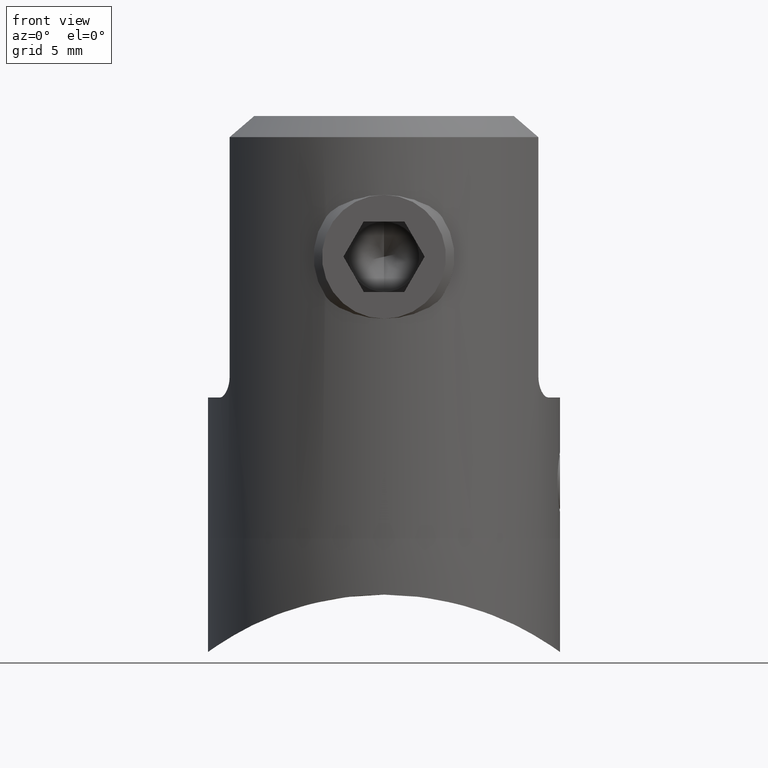
[diagram: clean part render]
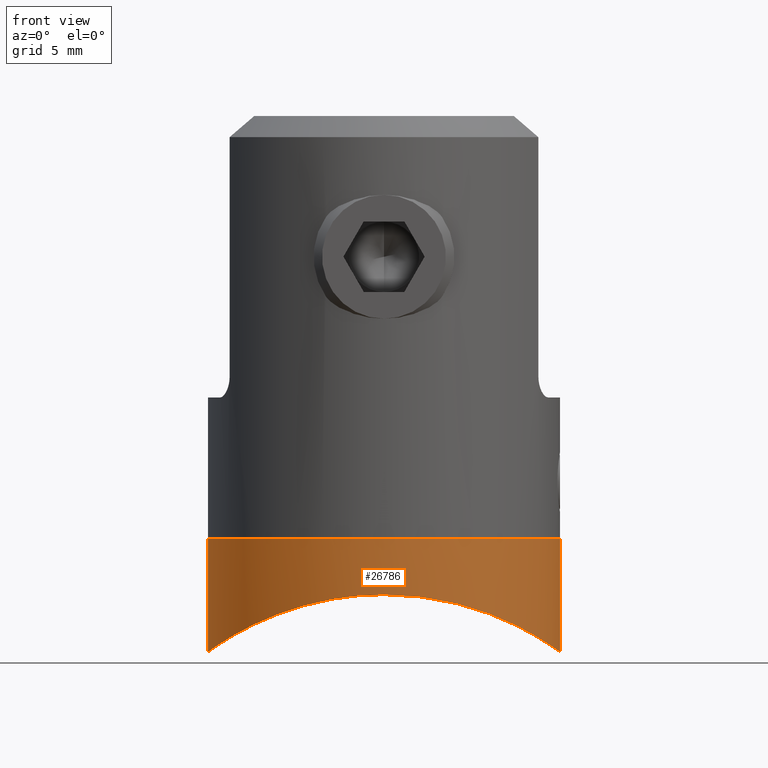
[diagram: same view with one face highlighted and labeled with its STEP entity id]
A machine part, front view. The second image highlights one B-rep face of the part: STEP entity #26786.
In plain terms, the highlighted cylindrical surface (partial cylindrical patch) has radius 12.5 mm, axis along (0, 0, 1).
Its self-contained STEP definition (entity closure, byte-faithful):
#670 = CARTESIAN_POINT ( 'NONE',  ( 0.000000000000000000, 0.000000000000000000, 5.749999999999997335 ) ) ;
#762 = LINE ( 'NONE', #17714, #14923 ) ;
#1360 = CYLINDRICAL_SURFACE ( 'NONE', #11785, 12.50000000000000000 ) ;
#1554 = CARTESIAN_POINT ( 'NONE',  ( -11.18870716499050388, -5.588053101674120171, -8.941573959159999418 ) ) ;
#1767 = CARTESIAN_POINT ( 'NONE',  ( -2.911118245393945259, -12.16337517407138336, -5.946830722691699656 ) ) ;
#2196 = VERTEX_POINT ( 'NONE', #23072 ) ;
#2277 = CARTESIAN_POINT ( 'NONE',  ( 12.33117961256404627, -2.089055135293411691, -9.704933785343399677 ) ) ;
#2378 = CARTESIAN_POINT ( 'NONE',  ( 4.487631671744206407, -11.67385373240651880, -6.226791520103160948 ) ) ;
#4227 = VERTEX_POINT ( 'NONE', #24435 ) ;
#4362 = AXIS2_PLACEMENT_3D ( 'NONE', #19887, #30072, #27326 ) ;
#4574 = CARTESIAN_POINT ( 'NONE',  ( 9.403305521134274869, -8.245497714350262797, -7.947383769223300476 ) ) ;
#4691 = CARTESIAN_POINT ( 'NONE',  ( 12.47833989174413105, -0.8460582172690088720, -9.811337575240948183 ) ) ;
#4791 = CARTESIAN_POINT ( 'NONE',  ( 1.678315568910832001, -12.41462453008218603, -5.800655569445084758 ) ) ;
#4893 = CARTESIAN_POINT ( 'NONE',  ( 12.50000000000000000, 2.518572144899539184E-17, -9.827208171562677563 ) ) ;
#5269 = DIRECTION ( 'NONE',  ( -0.000000000000000000, -0.000000000000000000, 1.000000000000000000 ) ) ;
#6724 = CARTESIAN_POINT ( 'NONE',  ( -10.59385491540156465, -6.646886547130763212, -8.584919949545325224 ) ) ;
#6836 = CARTESIAN_POINT ( 'NONE',  ( -0.8487323949553903235, -12.47823981505457702, -5.762851077021878154 ) ) ;
#6959 = CARTESIAN_POINT ( 'NONE',  ( -5.630589102198654494, -11.19027781518488496, -6.496600303528405895 ) ) ;
#7220 = CARTESIAN_POINT ( 'NONE',  ( 5.619303941650947820, -11.19572325304619298, -6.493601145328982582 ) ) ;
#7481 = CARTESIAN_POINT ( 'NONE',  ( 12.50000000000000000, 0.000000000000000000, -1.750000000000001554 ) ) ;
#7546 = CARTESIAN_POINT ( 'NONE',  ( 8.279535180820911222, -9.373339010132042404, -7.430778901805291881 ) ) ;
#9084 = EDGE_CURVE ( 'NONE', #2196, #24236, #10186, .T. ) ;
#9291 = CARTESIAN_POINT ( 'NONE',  ( -9.417191657544828232, -8.258575261328727990, -7.946280860183530415 ) ) ;
#9413 = CARTESIAN_POINT ( 'NONE',  ( 0.000000000000000000, -12.50000000000000000, -5.750000000000002665 ) ) ;
#9797 = CARTESIAN_POINT ( 'NONE',  ( 9.911829081699810473, -7.626665820417176889, -8.207608941409258563 ) ) ;
#9895 = CARTESIAN_POINT ( 'NONE',  ( 12.16551156270818979, -2.902149274800355450, -9.587666406763782234 ) ) ;
#10186 = CIRCLE ( 'NONE', #4362, 12.50000000000000000 ) ;
#11601 = CARTESIAN_POINT ( 'NONE',  ( -1.685389574230044873, -12.39299308251790421, -5.812945140209897943 ) ) ;
#11785 = AXIS2_PLACEMENT_3D ( 'NONE', #670, #28044, #18066 ) ;
#11819 = CARTESIAN_POINT ( 'NONE',  ( -8.571689664517119667, -9.106894493223309794, -7.557673005536443611 ) ) ;
#11932 = CARTESIAN_POINT ( 'NONE',  ( -7.333251704523717329, -10.13083348034543008, -7.055605124266487671 ) ) ;
#12099 = CARTESIAN_POINT ( 'NONE',  ( 11.67577370579695284, -4.482234837457978571, -9.253914435742281341 ) ) ;
#12205 = CARTESIAN_POINT ( 'NONE',  ( 7.662946823727386558, -9.883796486474240695, -7.180580659326714965 ) ) ;
#12216 = EDGE_CURVE ( 'NONE', #4227, #22170, #13975, .T. ) ;
#12520 = CARTESIAN_POINT ( 'NONE',  ( 0.8480344037231007936, -12.50000000000000000, -5.750000000000002665 ) ) ;
#12844 = DIRECTION ( 'NONE',  ( -0.000000000000000000, -0.000000000000000000, 1.000000000000000000 ) ) ;
#13975 = B_SPLINE_CURVE_WITH_KNOTS ( 'NONE', 3,
 ( #25145, #12520, #4791, #29770, #22431, #30082, #2378, #7220, #17338, #19791, #12205, #7546, #15010, #29889, #4574, #9797, #22320, #29657, #32307, #12099, #32409, #17240, #9895, #2277, #17559, #4691, #27122, #4893 ),
 .UNSPECIFIED., .F., .F.,
 ( 4, 2, 2, 2, 2, 2, 2, 2, 2, 2, 2, 2, 2, 4 ),
 ( 0.04004282410750474586, 0.04254395269500140658, 0.04379451698874973348, 0.04504508128249806731, 0.04754620986999472804, 0.04879677416374305493, 0.05004733845749138182, 0.05129790275123971566, 0.05254846704498804255, 0.05504959563248470328, 0.05630015992623303711, 0.05755072421998136400, 0.05880128851372969090, 0.06005185280747802473 ),
 .UNSPECIFIED. ) ;
#13984 = CARTESIAN_POINT ( 'NONE',  ( -7.653913046793571873, -9.890859821899340432, -7.177055782848215770 ) ) ;
#14100 = CARTESIAN_POINT ( 'NONE',  ( -11.67888136852552172, -4.474238905911794184, -9.255962010328781631 ) ) ;
#14203 = CARTESIAN_POINT ( 'NONE',  ( -12.41514147472777374, -1.674481698528728302, -9.764387211575183301 ) ) ;
#14312 = CARTESIAN_POINT ( 'NONE',  ( -3.312106940215546302, -12.06032247301186544, -6.006475233276793446 ) ) ;
#14422 = CARTESIAN_POINT ( 'NONE',  ( -4.495023123683525412, -11.67106378708704817, -6.228367817353142044 ) ) ;
#14923 = VECTOR ( 'NONE', #5269, 1000.000000000000000 ) ;
#15010 = CARTESIAN_POINT ( 'NONE',  ( 8.573868162433711859, -9.104790807498288174, -7.558651592792292817 ) ) ;
#16739 = CARTESIAN_POINT ( 'NONE',  ( -0.4239928753574701559, -12.49999999999999822, -5.750000000000002665 ) ) ;
#16858 = CARTESIAN_POINT ( 'NONE',  ( -11.81913323577869690, -4.090088125605240599, -9.349717475568690261 ) ) ;
#16884 = LINE ( 'NONE', #27672, #19265 ) ;
#17240 = CARTESIAN_POINT ( 'NONE',  ( 12.06230172538940870, -3.305024143122571978, -9.515465179917303118 ) ) ;
#17338 = CARTESIAN_POINT ( 'NONE',  ( 6.331237259860879263, -10.80853046834037379, -6.704929767777445981 ) ) ;
#17559 = CARTESIAN_POINT ( 'NONE',  ( 12.39392422690614559, -1.677922292184664821, -9.750193070227515690 ) ) ;
#17565 = ORIENTED_EDGE ( 'NONE', *, *, #27263, .T. ) ;
#17714 = CARTESIAN_POINT ( 'NONE',  ( 12.50000000000000000, 0.000000000000000000, 5.749999999999997335 ) ) ;
#18051 = VERTEX_POINT ( 'NONE', #30464 ) ;
#18066 = DIRECTION ( 'NONE',  ( 1.000000000000000000, 0.000000000000000000, 0.000000000000000000 ) ) ;
#18655 = ORIENTED_EDGE ( 'NONE', *, *, #12216, .T. ) ;
#19265 = VECTOR ( 'NONE', #12844, 1000.000000000000000 ) ;
#19402 = CARTESIAN_POINT ( 'NONE',  ( -2.097758874790804473, -12.32970854347814438, -5.850067847664313980 ) ) ;
#19791 = CARTESIAN_POINT ( 'NONE',  ( 7.339762198436803331, -10.12633274694356089, -7.057922447429813673 ) ) ;
#19887 = CARTESIAN_POINT ( 'NONE',  ( 0.000000000000000000, 0.000000000000000000, -1.750000000000001554 ) ) ;
#20814 = EDGE_CURVE ( 'NONE', #18051, #2196, #16884, .T. ) ;
#20963 = ORIENTED_EDGE ( 'NONE', *, *, #32573, .T. ) ;
#21213 = ORIENTED_EDGE ( 'NONE', *, *, #9084, .F. ) ;
#21939 = CARTESIAN_POINT ( 'NONE',  ( -10.80416110925320972, -6.299492695157285382, -8.708270936733697454 ) ) ;
#22052 = CARTESIAN_POINT ( 'NONE',  ( -12.16717615024455235, -2.895208322033748338, -9.588834119889462215 ) ) ;
#22170 = VERTEX_POINT ( 'NONE', #26967 ) ;
#22320 = CARTESIAN_POINT ( 'NONE',  ( 10.15300342156691471, -7.302523849488594010, -8.337582675793706599 ) ) ;
#22431 = CARTESIAN_POINT ( 'NONE',  ( 3.301715213490723055, -12.06328276605801086, -6.004773213100484064 ) ) ;
#23072 = CARTESIAN_POINT ( 'NONE',  ( -12.50000000000000000, 1.530808498934191521E-15, -1.750000000000001554 ) ) ;
#23364 = B_SPLINE_CURVE_WITH_KNOTS ( 'NONE', 3,
 ( #29073, #26840, #14203, #22052, #31823, #16858, #14100, #29272, #1554, #21939, #6724, #24357, #9291, #11819, #29397, #13984, #11932, #32033, #6959, #14422, #24461, #14312, #1767, #19402, #11601, #6836, #16739, #9413 ),
 .UNSPECIFIED., .F., .F.,
 ( 4, 2, 2, 2, 2, 2, 2, 2, 2, 2, 2, 2, 2, 4 ),
 ( 0.02003494335557738301, 0.02253592844956830640, 0.02378642099656376463, 0.02503691354355922633, 0.02628740609055468802, 0.02753789863755014625, 0.03003888373154106964, 0.03128937627853652786, 0.03253986882553198956, 0.03504085391952291295, 0.03629134646651836771, 0.03754183901351382940, 0.03879233156050928416, 0.04004282410750474586 ),
 .UNSPECIFIED. ) ;
#24236 = VERTEX_POINT ( 'NONE', #7481 ) ;
#24357 = CARTESIAN_POINT ( 'NONE',  ( -9.922007637338282393, -7.645077854451430177, -8.208135808907748299 ) ) ;
#24435 = CARTESIAN_POINT ( 'NONE',  ( 0.000000000000000000, -12.50000000000000000, -5.750000000000002665 ) ) ;
#24461 = CARTESIAN_POINT ( 'NONE',  ( -4.102927738305303329, -11.81471178280299306, -6.146940945812383816 ) ) ;
#25145 = CARTESIAN_POINT ( 'NONE',  ( 0.000000000000000000, -12.50000000000000000, -5.750000000000002665 ) ) ;
#26609 = ORIENTED_EDGE ( 'NONE', *, *, #20814, .F. ) ;
#26786 = ADVANCED_FACE ( 'NONE', ( #29716 ), #1360, .T. ) ;
#26840 = CARTESIAN_POINT ( 'NONE',  ( -12.50000000000000355, -0.8454956983653687530, -9.827208171562682892 ) ) ;
#26967 = CARTESIAN_POINT ( 'NONE',  ( 12.50000000000000000, 2.518572144899539184E-17, -9.827208171562677563 ) ) ;
#27122 = CARTESIAN_POINT ( 'NONE',  ( 12.49999999999999822, -0.4233196567433240021, -9.827208171562677563 ) ) ;
#27128 = EDGE_LOOP ( 'NONE', ( #26609, #17565, #18655, #20963, #21213 ) ) ;
#27263 = EDGE_CURVE ( 'NONE', #18051, #4227, #23364, .T. ) ;
#27326 = DIRECTION ( 'NONE',  ( 1.000000000000000000, 0.000000000000000000, 0.000000000000000000 ) ) ;
#27672 = CARTESIAN_POINT ( 'NONE',  ( -12.50000000000000000, 1.530808498934191521E-15, 5.749999999999997335 ) ) ;
#28044 = DIRECTION ( 'NONE',  ( -0.000000000000000000, -0.000000000000000000, 1.000000000000000000 ) ) ;
#29073 = CARTESIAN_POINT ( 'NONE',  ( -12.50000000000000000, 1.505622776427804803E-15, -9.827208171562677563 ) ) ;
#29272 = CARTESIAN_POINT ( 'NONE',  ( -11.36367112386808564, -5.223223372194016889, -9.051893145123218076 ) ) ;
#29397 = CARTESIAN_POINT ( 'NONE',  ( -8.273412754017392956, -9.378813056352161226, -7.428157122235221621 ) ) ;
#29657 = CARTESIAN_POINT ( 'NONE',  ( 10.82283268146289856, -6.305364775479285200, -8.713538685805440664 ) ) ;
#29716 = FACE_OUTER_BOUND ( 'NONE', #27128, .T. ) ;
#29770 = CARTESIAN_POINT ( 'NONE',  ( 2.898981779586809804, -12.16627781963594401, -5.945148586828878479 ) ) ;
#29889 = CARTESIAN_POINT ( 'NONE',  ( 9.135753686309604049, -8.540868544719572242, -7.816949723068414180 ) ) ;
#30072 = DIRECTION ( 'NONE',  ( -0.000000000000000000, -0.000000000000000000, 1.000000000000000000 ) ) ;
#30082 = CARTESIAN_POINT ( 'NONE',  ( 4.098852324906580691, -11.81623984453075771, -6.146075896017667795 ) ) ;
#30464 = CARTESIAN_POINT ( 'NONE',  ( -12.50000000000000000, 1.505622776427804803E-15, -9.827208171562677563 ) ) ;
#31823 = CARTESIAN_POINT ( 'NONE',  ( -12.06343881029605747, -3.300632574302776234, -9.516259739942960039 ) ) ;
#32033 = CARTESIAN_POINT ( 'NONE',  ( -6.338017158146809216, -10.80374975536678939, -6.707380341539678881 ) ) ;
#32307 = CARTESIAN_POINT ( 'NONE',  ( 11.20367744071613636, -5.602150914853484487, -8.948384641637636250 ) ) ;
#32409 = CARTESIAN_POINT ( 'NONE',  ( 11.81646282856599406, -4.097988985108877991, -9.347916784422171332 ) ) ;
#32573 = EDGE_CURVE ( 'NONE', #22170, #24236, #762, .T. ) ;